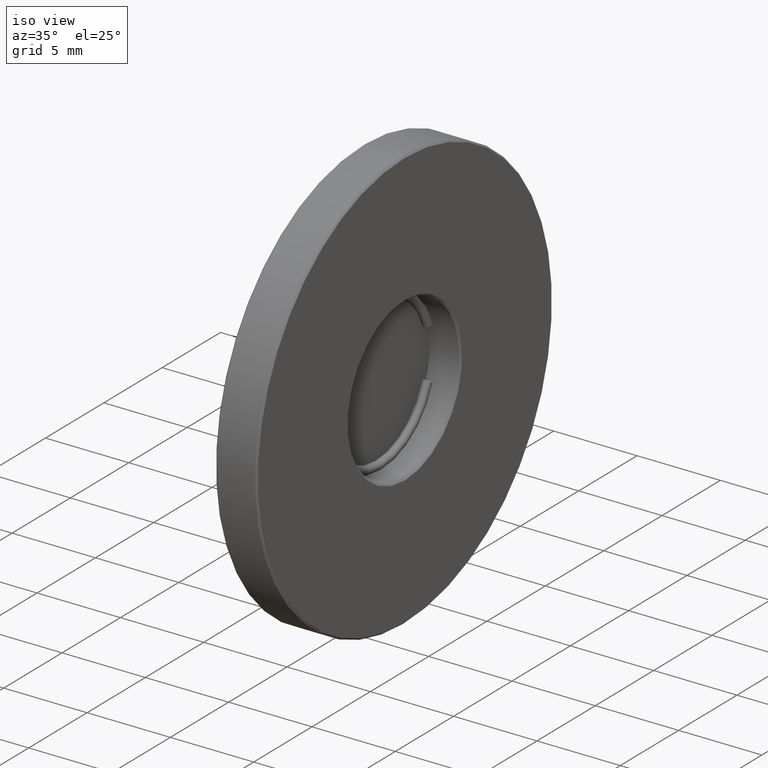
[diagram: clean part render]
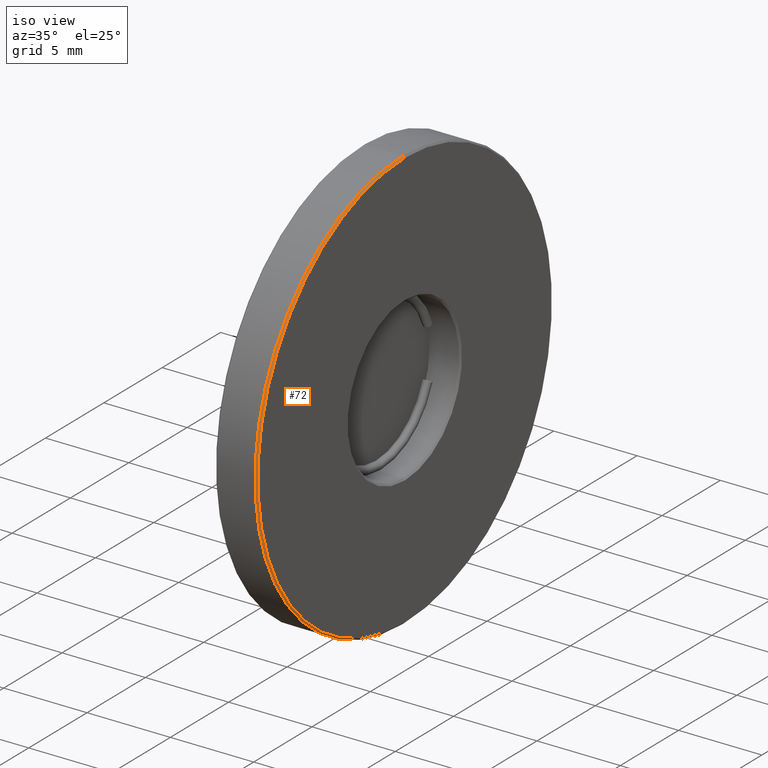
[diagram: same view with one face highlighted and labeled with its STEP entity id]
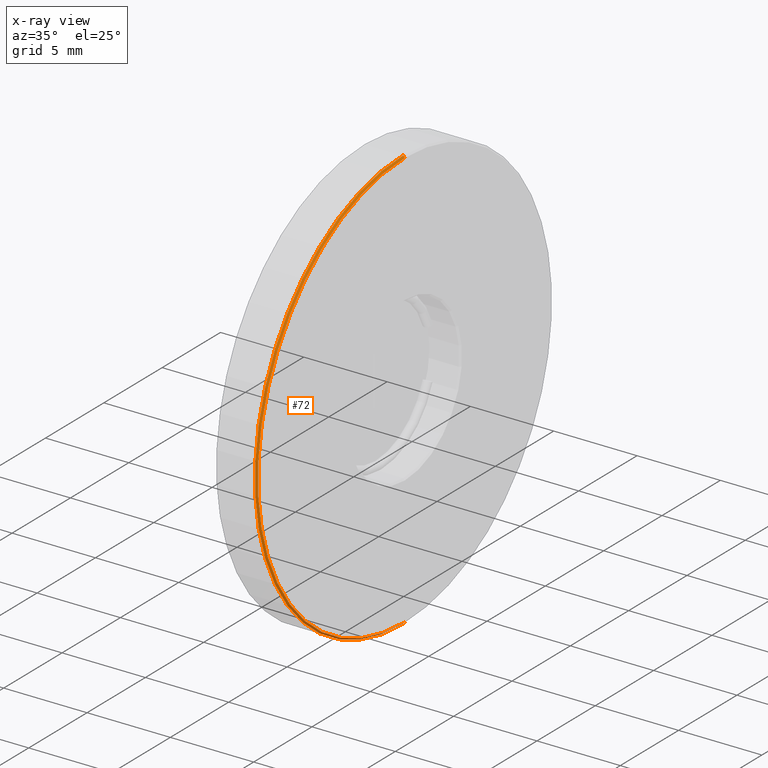
[diagram: x-ray of the same camera — body ghosted, the highlighted face saturated]
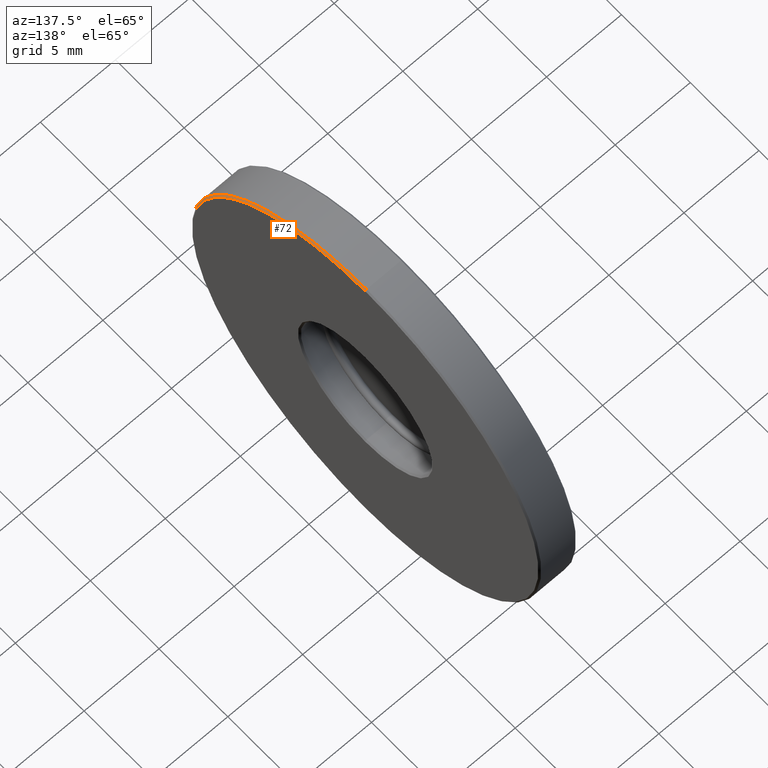
[diagram: same view with one face highlighted and labeled with its STEP entity id]
A machine part, iso view. The second image highlights one B-rep face of the part: STEP entity #72.
The next image is the same camera in x-ray: the body ghosted, the highlighted face saturated — about 0% of this face is hidden behind the body in this view.
A second angle (auxiliary view) of the same face is appended — the face is thin or edge-on in the first view.
In plain terms, the highlighted conical surface has half-angle 45 deg.
Its self-contained STEP definition (entity closure, byte-faithful):
#64 = AXIS2_PLACEMENT_3D ( 'NONE', #832, #309, #111 ) ;
#72 = ADVANCED_FACE ( 'NONE', ( #761 ), #226, .T. ) ;
#103 = DIRECTION ( 'NONE',  ( -0.7071067811865415775, 0.000000000000000000, 0.7071067811865535679 ) ) ;
#111 = DIRECTION ( 'NONE',  ( 0.000000000000000000, 0.000000000000000000, 1.000000000000000000 ) ) ;
#125 = EDGE_CURVE ( 'NONE', #220, #852, #236, .T. ) ;
#161 = VERTEX_POINT ( 'NONE', #282 ) ;
#203 = CARTESIAN_POINT ( 'NONE',  ( -2.434863851252999645, 1.436758841085000071, 38.00000000000000000 ) ) ;
#220 = VERTEX_POINT ( 'NONE', #346 ) ;
#226 = CONICAL_SURFACE ( 'NONE', #64, 12.59999999999999964, 0.7853981633974568277 ) ;
#235 = CARTESIAN_POINT ( 'NONE',  ( -2.434863851252999645, 1.436758841085000071, 25.39999999999999858 ) ) ;
#236 = LINE ( 'NONE', #821, #302 ) ;
#247 = DIRECTION ( 'NONE',  ( 1.000000000000000000, 0.000000000000000000, 0.000000000000000000 ) ) ;
#282 = CARTESIAN_POINT ( 'NONE',  ( -2.534863851253000178, 1.436758841085000071, 38.09999999999999432 ) ) ;
#292 = DIRECTION ( 'NONE',  ( 0.000000000000000000, 0.000000000000000000, -1.000000000000000000 ) ) ;
#299 = AXIS2_PLACEMENT_3D ( 'NONE', #879, #448, #292 ) ;
#302 = VECTOR ( 'NONE', #422, 1000.000000000000000 ) ;
#309 = DIRECTION ( 'NONE',  ( -1.000000000000000000, 0.000000000000000000, 0.000000000000000000 ) ) ;
#346 = CARTESIAN_POINT ( 'NONE',  ( -2.434863851252999645, 1.436758841085001626, 12.79999999999999893 ) ) ;
#351 = EDGE_CURVE ( 'NONE', #852, #161, #395, .T. ) ;
#354 = ORIENTED_EDGE ( 'NONE', *, *, #125, .F. ) ;
#390 = CARTESIAN_POINT ( 'NONE',  ( -2.434863851252999645, 1.436758841085000071, 38.00000000000000000 ) ) ;
#395 = CIRCLE ( 'NONE', #299, 12.69999999999999929 ) ;
#422 = DIRECTION ( 'NONE',  ( -0.7071067811865415775, 8.659560562355003116E-17, -0.7071067811865535679 ) ) ;
#430 = AXIS2_PLACEMENT_3D ( 'NONE', #235, #247, #600 ) ;
#448 = DIRECTION ( 'NONE',  ( -1.000000000000000000, 0.000000000000000000, 0.000000000000000000 ) ) ;
#477 = CARTESIAN_POINT ( 'NONE',  ( -2.534863851253000178, 1.436758841085001626, 12.69999999999999929 ) ) ;
#512 = EDGE_CURVE ( 'NONE', #888, #161, #615, .T. ) ;
#561 = ORIENTED_EDGE ( 'NONE', *, *, #771, .F. ) ;
#600 = DIRECTION ( 'NONE',  ( 0.000000000000000000, 0.000000000000000000, -1.000000000000000000 ) ) ;
#615 = LINE ( 'NONE', #390, #763 ) ;
#761 = FACE_OUTER_BOUND ( 'NONE', #938, .T. ) ;
#763 = VECTOR ( 'NONE', #103, 1000.000000000000000 ) ;
#771 = EDGE_CURVE ( 'NONE', #888, #220, #777, .T. ) ;
#777 = CIRCLE ( 'NONE', #430, 12.59999999999999964 ) ;
#791 = ORIENTED_EDGE ( 'NONE', *, *, #351, .F. ) ;
#821 = CARTESIAN_POINT ( 'NONE',  ( -2.434863851252999645, 1.436758841085001626, 12.79999999999999893 ) ) ;
#832 = CARTESIAN_POINT ( 'NONE',  ( -2.434863851252999645, 1.436758841085000071, 25.39999999999999858 ) ) ;
#852 = VERTEX_POINT ( 'NONE', #477 ) ;
#877 = ORIENTED_EDGE ( 'NONE', *, *, #512, .T. ) ;
#879 = CARTESIAN_POINT ( 'NONE',  ( -2.534863851253000178, 1.436758841085000071, 25.39999999999999858 ) ) ;
#888 = VERTEX_POINT ( 'NONE', #203 ) ;
#938 = EDGE_LOOP ( 'NONE', ( #354, #561, #877, #791 ) ) ;